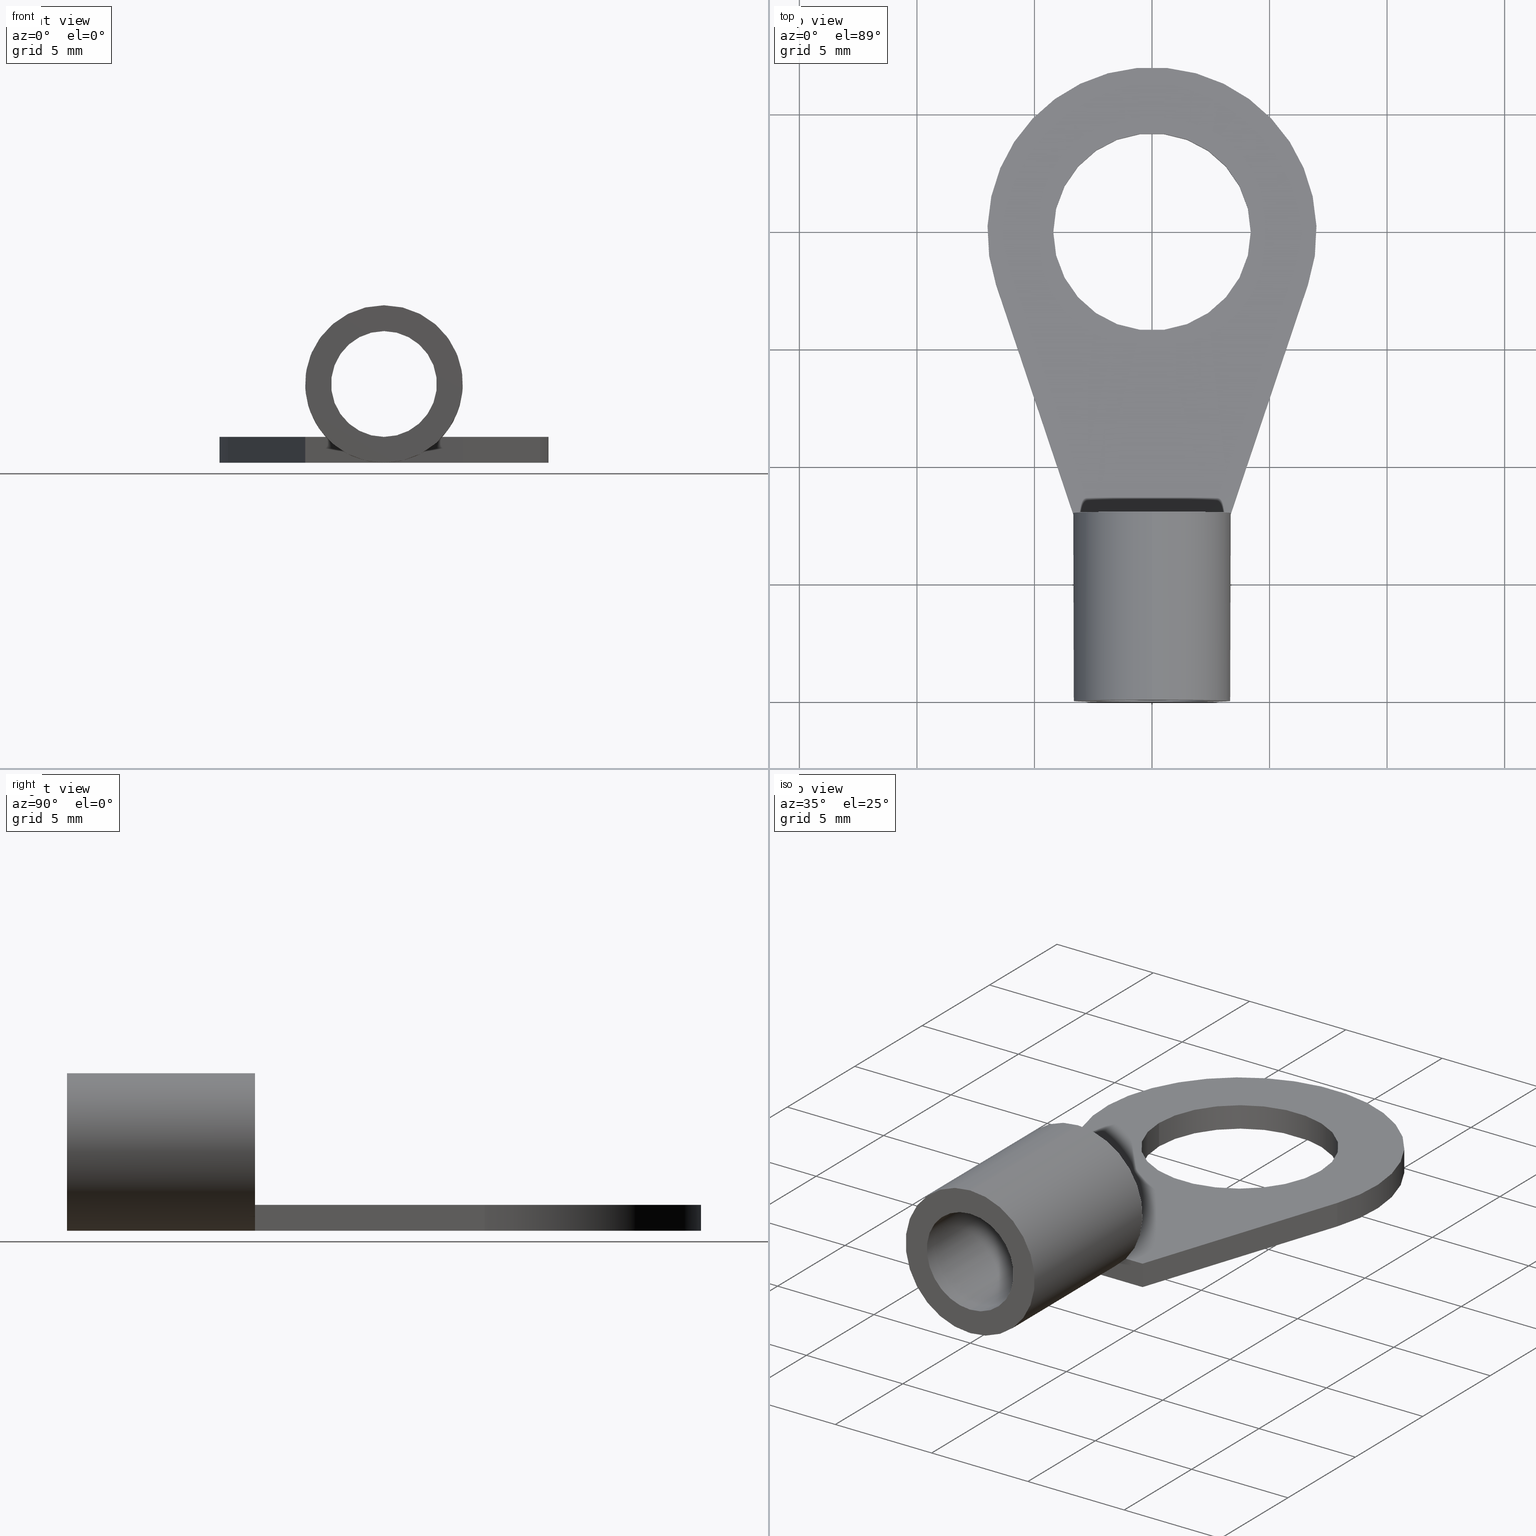
[diagram: canonical four-view strip — front | top / right | iso, engineering-drawing reading convention]
A machine part, canonical four-view strip (front | top / right | iso — engineering-drawing reading convention). The complete STEP part file that produces these views, byte-faithful:
ISO-10303-21;
HEADER;
FILE_DESCRIPTION(('Creo Elements/Direct Modeling STEP Export'),'2;1');
FILE_NAME(
'D:/temp/JobSpoolerServerData/JobServer Files/b4286439-af4a-429a-a239-a9
8053c1794e/work/output/model.stp','2017-10-18T 7:21:35',(''),(''),
'Creo Elements/Direct Modeling STEP processor for AP214 (Solid Model)',
'Creo Elements/Direct Modeling 18.1I  14-Aug-2016 (C) Parametric Technol
ogy GmbH','');
FILE_SCHEMA(('AUTOMOTIVE_DESIGN { 1 0 10303 214 1 1 1 1 }'));
ENDSEC;
DATA;
#10=CARTESIAN_POINT('',(7.55918008727245,209.799760805683,
127.490621386443));
#20=DIRECTION('',(-5.91634389396356E-9,0.169437138749457,
-0.985540996616781));
#30=DIRECTION('',(0.150207606047662,0.974359518819137,0.167514784935453)
);
#40=AXIS2_PLACEMENT_3D('',#10,#20,#30);
#50=CYLINDRICAL_SURFACE('',#40,4.2);
#60=CARTESIAN_POINT('',(8.19005203267263,213.892070784723,
128.194183483172));
#70=DIRECTION('',(-5.91634389396356E-9,0.169437138749457,
-0.985540996616781));
#80=VECTOR('',#70,1.);
#90=LINE('',#60,#80);
#100=CARTESIAN_POINT('',(8.19005203267263,213.892070784724,
128.194183483171));
#110=VERTEX_POINT('',#100);
#120=CARTESIAN_POINT('',(8.19005202616465,214.078451637348,
127.110088386893));
#130=VERTEX_POINT('',#120);
#140=EDGE_CURVE('',#110,#130,#90,.T.);
#150=ORIENTED_EDGE('',*,*,#140,.F.);
#160=CARTESIAN_POINT('',(7.55918008076447,209.986141658308,
126.406526290164));
#170=DIRECTION('',(-5.91634389396356E-9,0.169437138749457,
-0.985540996616781));
#180=DIRECTION('',(0.150207606047662,0.974359518819137,0.167514784935453
));
#190=AXIS2_PLACEMENT_3D('',#160,#170,#180);
#200=CIRCLE('',#190,4.2);
#210=CARTESIAN_POINT('',(6.92830813536429,205.893831679267,
125.702964193435));
#220=VERTEX_POINT('',#210);
#230=EDGE_CURVE('',#220,#130,#200,.T.);
#240=ORIENTED_EDGE('',*,*,#230,.T.);
#250=CARTESIAN_POINT('',(6.92830814187227,205.707450826643,
126.787059289714));
#260=DIRECTION('',(-5.91634389396356E-9,0.169437138749457,
-0.985540996616781));
#270=VECTOR('',#260,1.);
#280=LINE('',#250,#270);
#290=CARTESIAN_POINT('',(6.92830814187227,205.707450826643,
126.787059289713));
#300=VERTEX_POINT('',#290);
#310=EDGE_CURVE('',#300,#220,#280,.T.);
#320=ORIENTED_EDGE('',*,*,#310,.T.);
#330=CARTESIAN_POINT('',(7.55918008727245,209.799760805683,
127.490621386442));
#340=DIRECTION('',(-5.91634389396356E-9,0.169437138749457,
-0.985540996616781));
#350=DIRECTION('',(0.150207606047662,0.974359518819137,0.167514784935453
));
#360=AXIS2_PLACEMENT_3D('',#330,#340,#350);
#370=CIRCLE('',#360,4.2);
#380=EDGE_CURVE('',#300,#110,#370,.T.);
#390=ORIENTED_EDGE('',*,*,#380,.F.);
#400=EDGE_LOOP('',(#390,#320,#240,#150));
#410=FACE_OUTER_BOUND('',#400,.T.);
#420=ADVANCED_FACE('',(#410),#50,.F.);
#430=COLOUR_RGB('',0.752941250801086,0.752941250801086,0.752941250801086
);
#440=FILL_AREA_STYLE_COLOUR('',#430);
#450=FILL_AREA_STYLE('',(#440));
#460=SURFACE_STYLE_FILL_AREA(#450);
#470=SURFACE_SIDE_STYLE('',(#460));
#480=SURFACE_STYLE_USAGE(.BOTH.,#470);
#490=PRESENTATION_STYLE_ASSIGNMENT((#480));
#500=CARTESIAN_POINT('',(6.67871071034626,209.961204079557,
127.518377199441));
#510=DIRECTION('',(-5.91634389092459E-9,0.169437138749457,
-0.985540996616781));
#520=DIRECTION('',(1.,5.42947599190825E-9,-5.06969170343868E-9));
#530=AXIS2_PLACEMENT_3D('',#500,#510,#520);
#540=PLANE('',#530);
#550=CARTESIAN_POINT('',(0.,205.87430382224,126.815745194463));
#560=DIRECTION('',(-0.889217967210451,0.450869017245236,
0.0775147474899381));
#570=VECTOR('',#560,1.);
#580=LINE('',#550,#570);
#590=CARTESIAN_POINT('',(4.35679364389692,203.665235471174,
126.435955568494));
#600=VERTEX_POINT('',#590);
#610=CARTESIAN_POINT('',(-4.80786911816026,208.31208545091,
127.23485588993));
#620=VERTEX_POINT('',#610);
#630=EDGE_CURVE('',#600,#620,#580,.T.);
#640=ORIENTED_EDGE('',*,*,#630,.F.);
#650=CARTESIAN_POINT('',(-36.9213334627195,0.,91.4212229138226));
#660=DIRECTION('',(0.150207606047676,0.974359518819134,0.167514784935453
));
#670=VECTOR('',#660,1.);
#680=LINE('',#650,#670);
#690=CARTESIAN_POINT('',(-4.30467363790053,211.576189838954,
127.796030419464));
#700=VERTEX_POINT('',#690);
#710=EDGE_CURVE('',#620,#700,#680,.T.);
#720=ORIENTED_EDGE('',*,*,#710,.F.);
#730=CARTESIAN_POINT('',(-3.80147815764083,214.840294226998,
128.357204948997));
#740=VERTEX_POINT('',#730);
#750=EDGE_CURVE('',#700,#740,#680,.T.);
#760=ORIENTED_EDGE('',*,*,#750,.F.);
#770=CARTESIAN_POINT('',(0.,215.497328884413,128.470164278242));
#780=DIRECTION('',(0.984968130986959,0.170238568175705,
0.0292679149503728));
#790=VECTOR('',#780,1.);
#800=LINE('',#770,#790);
#810=CARTESIAN_POINT('',(6.35002696791049,216.594846118612,
128.658852666609));
#820=VERTEX_POINT('',#810);
#830=EDGE_CURVE('',#740,#820,#800,.T.);
#840=ORIENTED_EDGE('',*,*,#830,.F.);
#850=CARTESIAN_POINT('',(7.55918008727245,209.799760805683,
127.490621386442));
#860=DIRECTION('',(-5.91634389571428E-9,0.169437138749457,
-0.985540996616781));
#870=DIRECTION('',(1.,5.42947599304575E-9,-5.06969170810309E-9));
#880=AXIS2_PLACEMENT_3D('',#850,#860,#870);
#890=CIRCLE('',#880,7.);
#900=EDGE_CURVE('',#820,#600,#890,.T.);
#910=ORIENTED_EDGE('',*,*,#900,.F.);
#920=EDGE_LOOP('',(#910,#840,#760,#720,#640));
#930=FACE_OUTER_BOUND('',#920,.T.);
#940=EDGE_CURVE('',#110,#300,#370,.T.);
#950=ORIENTED_EDGE('',*,*,#940,.T.);
#960=ORIENTED_EDGE('',*,*,#380,.T.);
#970=EDGE_LOOP('',(#960,#950));
#980=FACE_BOUND('',#970,.T.);
#990=ADVANCED_FACE('',(#930,#980),#540,.F.);
#1000=COLOUR_RGB('',0.752941250801086,0.752941250801086,
0.752941250801086);
#1010=FILL_AREA_STYLE_COLOUR('',#1000);
#1020=FILL_AREA_STYLE('',(#1010));
#1030=SURFACE_STYLE_FILL_AREA(#1020);
#1040=SURFACE_SIDE_STYLE('',(#1030));
#1050=SURFACE_STYLE_USAGE(.BOTH.,#1040);
#1060=PRESENTATION_STYLE_ASSIGNMENT((#1050));
#1070=CARTESIAN_POINT('',(7.72299772260922,212.262650596853,
126.797910475337));
#1080=DIRECTION('',(5.91634389036865E-9,-0.169437138749457,
0.985540996616781));
#1090=DIRECTION('',(1.,5.42947597823552E-9,-5.06969170522524E-9));
#1100=AXIS2_PLACEMENT_3D('',#1070,#1080,#1090);
#1110=PLANE('',#1100);
#1120=CARTESIAN_POINT('',(0.,215.683709738163,127.386069182157));
#1130=DIRECTION('',(-0.984968130986959,-0.170238568175705,
-0.0292679149503728));
#1140=VECTOR('',#1130,1.);
#1150=LINE('',#1120,#1140);
#1160=CARTESIAN_POINT('',(6.35002696140251,216.781226971236,
127.574757570331));
#1170=VERTEX_POINT('',#1160);
#1180=CARTESIAN_POINT('',(-3.80147816414881,215.026675079622,
127.273109852719));
#1190=VERTEX_POINT('',#1180);
#1200=EDGE_CURVE('',#1170,#1190,#1150,.T.);
#1210=ORIENTED_EDGE('',*,*,#1200,.F.);
#1220=CARTESIAN_POINT('',(-36.9500660070076,0.,90.3050846673102));
#1230=DIRECTION('',(-0.150207606047676,-0.974359518819134,
-0.167514784935453));
#1240=VECTOR('',#1230,1.);
#1250=LINE('',#1220,#1240);
#1260=CARTESIAN_POINT('',(-3.93186817036907,214.180867420061,
127.127696085571));
#1270=VERTEX_POINT('',#1260);
#1280=EDGE_CURVE('',#1190,#1270,#1250,.T.);
#1290=ORIENTED_EDGE('',*,*,#1280,.F.);
#1300=CARTESIAN_POINT('',(-36.9500660070076,0.,90.3050846673102));
#1310=DIRECTION('',(-0.150207606047676,-0.974359518819134,
-0.167514784935453));
#1320=VECTOR('',#1310,1.);
#1330=LINE('',#1300,#1320);
#1340=CARTESIAN_POINT('',(-4.30467364440851,211.762570691579,
126.711935323185));
#1350=VERTEX_POINT('',#1340);
#1360=EDGE_CURVE('',#1270,#1350,#1330,.T.);
#1370=ORIENTED_EDGE('',*,*,#1360,.F.);
#1380=CARTESIAN_POINT('',(-4.67747911844793,209.344273963097,
126.2961745608));
#1390=VERTEX_POINT('',#1380);
#1400=EDGE_CURVE('',#1350,#1390,#1330,.T.);
#1410=ORIENTED_EDGE('',*,*,#1400,.F.);
#1420=CARTESIAN_POINT('',(-4.80786912466824,208.498466303534,
126.150760793651));
#1430=VERTEX_POINT('',#1420);
#1440=EDGE_CURVE('',#1390,#1430,#1250,.T.);
#1450=ORIENTED_EDGE('',*,*,#1440,.F.);
#1460=CARTESIAN_POINT('',(0.,206.060684671565,125.731650097618));
#1470=DIRECTION('',(0.889217967210451,-0.450869017245236,
-0.0775147474899381));
#1480=VECTOR('',#1470,1.);
#1490=LINE('',#1460,#1480);
#1500=CARTESIAN_POINT('',(4.35679363738893,203.851616323798,
125.351860472215));
#1510=VERTEX_POINT('',#1500);
#1520=EDGE_CURVE('',#1430,#1510,#1490,.T.);
#1530=ORIENTED_EDGE('',*,*,#1520,.F.);
#1540=CARTESIAN_POINT('',(7.55918008076447,209.986141658308,
126.406526290164));
#1550=DIRECTION('',(-5.91634389571428E-9,0.169437138749457,
-0.985540996616781));
#1560=DIRECTION('',(1.,5.42947599304575E-9,-5.06969170810309E-9));
#1570=AXIS2_PLACEMENT_3D('',#1540,#1550,#1560);
#1580=CIRCLE('',#1570,7.);
#1590=EDGE_CURVE('',#1170,#1510,#1580,.T.);
#1600=ORIENTED_EDGE('',*,*,#1590,.T.);
#1610=EDGE_LOOP('',(#1600,#1530,#1450,#1410,#1370,#1290,#1210));
#1620=FACE_OUTER_BOUND('',#1610,.T.);
#1630=EDGE_CURVE('',#130,#220,#200,.T.);
#1640=ORIENTED_EDGE('',*,*,#1630,.F.);
#1650=ORIENTED_EDGE('',*,*,#230,.F.);
#1660=EDGE_LOOP('',(#1650,#1640));
#1670=FACE_BOUND('',#1660,.T.);
#1680=ADVANCED_FACE('',(#1620,#1670),#1110,.F.);
#1690=COLOUR_RGB('',0.752941250801086,0.752941250801086,
0.752941250801086);
#1700=FILL_AREA_STYLE_COLOUR('',#1690);
#1710=FILL_AREA_STYLE('',(#1700));
#1720=SURFACE_STYLE_FILL_AREA(#1710);
#1730=SURFACE_SIDE_STYLE('',(#1720));
#1740=SURFACE_STYLE_USAGE(.BOTH.,#1730);
#1750=PRESENTATION_STYLE_ASSIGNMENT((#1740));
#1760=CARTESIAN_POINT('',(7.55918008076447,209.986141658308,
126.406526290164));
#1770=DIRECTION('',(-5.91634389571428E-9,0.169437138749457,
-0.985540996616781));
#1780=DIRECTION('',(1.,5.42947599197708E-9,-5.06969170188712E-9));
#1790=AXIS2_PLACEMENT_3D('',#1760,#1770,#1780);
#1800=CYLINDRICAL_SURFACE('',#1790,7.);
#1810=CARTESIAN_POINT('',(4.35679363738891,203.851616323798,
125.351860472215));
#1820=DIRECTION('',(5.91634389571428E-9,-0.169437138749457,
0.985540996616781));
#1830=VECTOR('',#1820,1.);
#1840=LINE('',#1810,#1830);
#1850=EDGE_CURVE('',#1510,#600,#1840,.T.);
#1860=ORIENTED_EDGE('',*,*,#1850,.F.);
#1870=ORIENTED_EDGE('',*,*,#900,.T.);
#1880=CARTESIAN_POINT('',(6.35002696140251,216.781226971236,
127.574757570331));
#1890=DIRECTION('',(5.91634389571428E-9,-0.169437138749457,
0.985540996616781));
#1900=VECTOR('',#1890,1.);
#1910=LINE('',#1880,#1900);
#1920=EDGE_CURVE('',#1170,#820,#1910,.T.);
#1930=ORIENTED_EDGE('',*,*,#1920,.T.);
#1940=ORIENTED_EDGE('',*,*,#1590,.F.);
#1950=EDGE_LOOP('',(#1940,#1930,#1870,#1860));
#1960=FACE_OUTER_BOUND('',#1950,.T.);
#1970=ADVANCED_FACE('',(#1960),#1800,.T.);
#1980=COLOUR_RGB('',0.752941250801086,0.752941250801086,
0.752941250801086);
#1990=FILL_AREA_STYLE_COLOUR('',#1980);
#2000=FILL_AREA_STYLE('',(#1990));
#2010=SURFACE_STYLE_FILL_AREA(#2000);
#2020=SURFACE_SIDE_STYLE('',(#2010));
#2030=SURFACE_STYLE_USAGE(.BOTH.,#2020);
#2040=PRESENTATION_STYLE_ASSIGNMENT((#2030));
#2050=CARTESIAN_POINT('',(-3.80147816414881,215.026675079622,
127.273109852719));
#2060=DIRECTION('',(-0.172736159908852,0.970726473275497,
0.166890182881021));
#2070=DIRECTION('',(-0.984968130986959,-0.170238568175705,
-0.0292679149503728));
#2080=AXIS2_PLACEMENT_3D('',#2050,#2060,#2070);
#2090=PLANE('',#2080);
#2100=ORIENTED_EDGE('',*,*,#1920,.F.);
#2110=ORIENTED_EDGE('',*,*,#830,.T.);
#2120=CARTESIAN_POINT('',(-3.80147816414881,215.026675079622,
127.273109852719));
#2130=DIRECTION('',(5.91634389571428E-9,-0.169437138749457,
0.985540996616781));
#2140=VECTOR('',#2130,1.);
#2150=LINE('',#2120,#2140);
#2160=EDGE_CURVE('',#1190,#740,#2150,.T.);
#2170=ORIENTED_EDGE('',*,*,#2160,.T.);
#2180=ORIENTED_EDGE('',*,*,#1200,.T.);
#2190=EDGE_LOOP('',(#2180,#2170,#2110,#2100));
#2200=FACE_OUTER_BOUND('',#2190,.T.);
#2210=ADVANCED_FACE('',(#2200),#2090,.T.);
#2220=COLOUR_RGB('',0.752941250801086,0.752941250801086,
0.752941250801086);
#2230=FILL_AREA_STYLE_COLOUR('',#2220);
#2240=FILL_AREA_STYLE('',(#2230));
#2250=SURFACE_STYLE_FILL_AREA(#2240);
#2260=SURFACE_SIDE_STYLE('',(#2250));
#2270=SURFACE_STYLE_USAGE(.BOTH.,#2260);
#2280=PRESENTATION_STYLE_ASSIGNMENT((#2270));
#2290=CARTESIAN_POINT('',(-4.80786912466825,208.498466303534,
126.150760793651));
#2300=DIRECTION('',(-0.98865447709775,0.148035752772573,
0.0254507527517699));
#2310=DIRECTION('',(-0.150207606047676,-0.974359518819135,
-0.167514784935453));
#2320=AXIS2_PLACEMENT_3D('',#2290,#2300,#2310);
#2330=PLANE('',#2320);
#2340=CARTESIAN_POINT('',(-4.30467365772028,212.143804253765,
124.494468080797));
#2350=DIRECTION('',(-0.98865447709775,0.148035752772573,
0.0254507527517699));
#2360=DIRECTION('',(-5.91634388347198E-9,0.169437138749457,
-0.985540996616781));
#2370=AXIS2_PLACEMENT_3D('',#2340,#2350,#2360);
#2380=CIRCLE('',#2370,3.35);
#2390=EDGE_CURVE('',#1390,#700,#2380,.T.);
#2400=ORIENTED_EDGE('',*,*,#2390,.F.);
#2410=ORIENTED_EDGE('',*,*,#710,.T.);
#2420=CARTESIAN_POINT('',(-4.80786912466825,208.498466303534,
126.150760793651));
#2430=DIRECTION('',(5.91634389571428E-9,-0.169437138749457,
0.985540996616781));
#2440=VECTOR('',#2430,1.);
#2450=LINE('',#2420,#2440);
#2460=EDGE_CURVE('',#1430,#620,#2450,.T.);
#2470=ORIENTED_EDGE('',*,*,#2460,.T.);
#2480=ORIENTED_EDGE('',*,*,#1440,.T.);
#2490=EDGE_LOOP('',(#2480,#2470,#2410,#2400));
#2500=FACE_OUTER_BOUND('',#2490,.T.);
#2510=ADVANCED_FACE('',(#2500),#2330,.T.);
#2520=COLOUR_RGB('',0.752941250801086,0.752941250801086,
0.752941250801086);
#2530=FILL_AREA_STYLE_COLOUR('',#2520);
#2540=FILL_AREA_STYLE('',(#2530));
#2550=SURFACE_STYLE_FILL_AREA(#2540);
#2560=SURFACE_SIDE_STYLE('',(#2550));
#2570=SURFACE_STYLE_USAGE(.BOTH.,#2560);
#2580=PRESENTATION_STYLE_ASSIGNMENT((#2570));
#2590=CARTESIAN_POINT('',(4.35679363738891,203.851616323798,
125.351860472215));
#2600=DIRECTION('',(-0.45748377762508,-0.876360762072739,
-0.150666545421251));
#2610=DIRECTION('',(0.889217967210451,-0.450869017245236,
-0.077514747489938));
#2620=AXIS2_PLACEMENT_3D('',#2590,#2600,#2610);
#2630=PLANE('',#2620);
#2640=ORIENTED_EDGE('',*,*,#2460,.F.);
#2650=ORIENTED_EDGE('',*,*,#630,.T.);
#2660=ORIENTED_EDGE('',*,*,#1850,.T.);
#2670=ORIENTED_EDGE('',*,*,#1520,.T.);
#2680=EDGE_LOOP('',(#2670,#2660,#2650,#2640));
#2690=FACE_OUTER_BOUND('',#2680,.T.);
#2700=ADVANCED_FACE('',(#2690),#2630,.T.);
#2710=COLOUR_RGB('',0.752941250801086,0.752941250801086,
0.752941250801086);
#2720=FILL_AREA_STYLE_COLOUR('',#2710);
#2730=FILL_AREA_STYLE('',(#2720));
#2740=SURFACE_STYLE_FILL_AREA(#2730);
#2750=SURFACE_SIDE_STYLE('',(#2740));
#2760=SURFACE_STYLE_USAGE(.BOTH.,#2750);
#2770=PRESENTATION_STYLE_ASSIGNMENT((#2760));
#2780=ORIENTED_EDGE('',*,*,#1280,.T.);
#2790=ORIENTED_EDGE('',*,*,#2160,.F.);
#2800=ORIENTED_EDGE('',*,*,#750,.T.);
#2810=EDGE_CURVE('',#700,#1270,#2380,.T.);
#2820=ORIENTED_EDGE('',*,*,#2810,.F.);
#2830=EDGE_LOOP('',(#2820,#2800,#2790,#2780));
#2840=FACE_OUTER_BOUND('',#2830,.T.);
#2850=ADVANCED_FACE('',(#2840),#2330,.T.);
#2860=COLOUR_RGB('',0.752941250801086,0.752941250801086,
0.752941250801086);
#2870=FILL_AREA_STYLE_COLOUR('',#2860);
#2880=FILL_AREA_STYLE('',(#2870));
#2890=SURFACE_STYLE_FILL_AREA(#2880);
#2900=SURFACE_SIDE_STYLE('',(#2890));
#2910=SURFACE_STYLE_USAGE(.BOTH.,#2900);
#2920=PRESENTATION_STYLE_ASSIGNMENT((#2910));
#2930=CARTESIAN_POINT('',(-4.30467365772029,212.143804253765,
124.494468080797));
#2940=DIRECTION('',(-0.98865447709775,0.148035752772573,
0.0254507527517699));
#2950=DIRECTION('',(-5.91634389376223E-9,0.169437138749457,
-0.985540996616781));
#2960=AXIS2_PLACEMENT_3D('',#2930,#2940,#2950);
#2970=CYLINDRICAL_SURFACE('',#2960,3.35);
#2980=CARTESIAN_POINT('',(-4.30467363790054,211.576189838954,
127.796030419464));
#2990=DIRECTION('',(-0.98865447709775,0.148035752772573,
0.0254507527517699));
#3000=VECTOR('',#2990,1.);
#3010=LINE('',#2980,#3000);
#3020=CARTESIAN_POINT('',(-12.2139094546825,212.760475861135,
127.999636441478));
#3030=VERTEX_POINT('',#3020);
#3040=EDGE_CURVE('',#700,#3030,#3010,.T.);
#3050=ORIENTED_EDGE('',*,*,#3040,.T.);
#3060=ORIENTED_EDGE('',*,*,#2390,.T.);
#3070=CARTESIAN_POINT('',(-4.30467365772029,212.143804253765,
124.494468080797));
#3080=DIRECTION('',(-0.98865447709775,0.148035752772573,
0.0254507527517699));
#3090=DIRECTION('',(-5.91634389376223E-9,0.169437138749457,
-0.985540996616781));
#3100=AXIS2_PLACEMENT_3D('',#3070,#3080,#3090);
#3110=CIRCLE('',#3100,3.35);
#3120=CARTESIAN_POINT('',(-4.30467367754004,212.711418668576,
121.192905742131));
#3130=VERTEX_POINT('',#3120);
#3140=EDGE_CURVE('',#3130,#1390,#3110,.T.);
#3150=ORIENTED_EDGE('',*,*,#3140,.T.);
#3160=CARTESIAN_POINT('',(-4.30467367754004,212.711418668576,
121.192905742131));
#3170=DIRECTION('',(-0.98865447709775,0.148035752772573,
0.0254507527517699));
#3180=VECTOR('',#3170,1.);
#3190=LINE('',#3160,#3180);
#3200=CARTESIAN_POINT('',(-12.213909494322,213.895704690756,
121.396511764145));
#3210=VERTEX_POINT('',#3200);
#3220=EDGE_CURVE('',#3130,#3210,#3190,.T.);
#3230=ORIENTED_EDGE('',*,*,#3220,.F.);
#3240=CARTESIAN_POINT('',(-12.2139094745023,213.328090275945,
124.698074102811));
#3250=DIRECTION('',(-0.98865447709775,0.148035752772573,
0.0254507527517699));
#3260=DIRECTION('',(-5.91634389376223E-9,0.169437138749457,
-0.985540996616781));
#3270=AXIS2_PLACEMENT_3D('',#3240,#3250,#3260);
#3280=CIRCLE('',#3270,3.35);
#3290=EDGE_CURVE('',#3210,#3030,#3280,.T.);
#3300=ORIENTED_EDGE('',*,*,#3290,.F.);
#3310=EDGE_LOOP('',(#3300,#3230,#3150,#3060,#3050));
#3320=FACE_OUTER_BOUND('',#3310,.T.);
#3330=ADVANCED_FACE('',(#3320),#2970,.T.);
#3340=COLOUR_RGB('',0.752941250801086,0.752941250801086,
0.752941250801086);
#3350=FILL_AREA_STYLE_COLOUR('',#3340);
#3360=FILL_AREA_STYLE('',(#3350));
#3370=SURFACE_STYLE_FILL_AREA(#3360);
#3380=SURFACE_SIDE_STYLE('',(#3370));
#3390=SURFACE_STYLE_USAGE(.BOTH.,#3380);
#3400=PRESENTATION_STYLE_ASSIGNMENT((#3390));
#3410=CARTESIAN_POINT('',(-12.2139094579365,212.853666287447,
127.457588893338));
#3420=DIRECTION('',(-0.98865447709775,0.148035752772573,
0.0254507527517699));
#3430=DIRECTION('',(-5.91634389376223E-9,0.169437138749457,
-0.985540996616781));
#3440=AXIS2_PLACEMENT_3D('',#3410,#3420,#3430);
#3450=PLANE('',#3440);
#3460=EDGE_CURVE('',#3030,#3210,#3280,.T.);
#3470=ORIENTED_EDGE('',*,*,#3460,.T.);
#3480=ORIENTED_EDGE('',*,*,#3290,.T.);
#3490=EDGE_LOOP('',(#3480,#3470));
#3500=FACE_OUTER_BOUND('',#3490,.T.);
#3510=CARTESIAN_POINT('',(-12.2139094745023,213.328090275945,
124.698074102811));
#3520=DIRECTION('',(-0.98865447709775,0.148035752772573,
0.0254507527517699));
#3530=DIRECTION('',(-5.91634389376223E-9,0.169437138749457,
-0.985540996616781));
#3540=AXIS2_PLACEMENT_3D('',#3510,#3520,#3530);
#3550=CIRCLE('',#3540,2.25);
#3560=CARTESIAN_POINT('',(-12.2139094878141,213.709323838132,
122.480606860424));
#3570=VERTEX_POINT('',#3560);
#3580=CARTESIAN_POINT('',(-12.2139094611905,212.946856713759,
126.915541345199));
#3590=VERTEX_POINT('',#3580);
#3600=EDGE_CURVE('',#3570,#3590,#3550,.T.);
#3610=ORIENTED_EDGE('',*,*,#3600,.F.);
#3620=EDGE_CURVE('',#3590,#3570,#3550,.T.);
#3630=ORIENTED_EDGE('',*,*,#3620,.F.);
#3640=EDGE_LOOP('',(#3630,#3610));
#3650=FACE_BOUND('',#3640,.T.);
#3660=ADVANCED_FACE('',(#3500,#3650),#3450,.T.);
#3670=COLOUR_RGB('',0.752941250801086,0.752941250801086,
0.752941250801086);
#3680=FILL_AREA_STYLE_COLOUR('',#3670);
#3690=FILL_AREA_STYLE('',(#3680));
#3700=SURFACE_STYLE_FILL_AREA(#3690);
#3710=SURFACE_SIDE_STYLE('',(#3700));
#3720=SURFACE_STYLE_USAGE(.BOTH.,#3710);
#3730=PRESENTATION_STYLE_ASSIGNMENT((#3720));
#3740=CARTESIAN_POINT('',(-4.30467364115454,211.669380265266,
127.253982871324));
#3750=DIRECTION('',(-0.98865447709775,0.148035752772573,
0.0254507527517699));
#3760=DIRECTION('',(-5.91634389376223E-9,0.169437138749457,
-0.985540996616781));
#3770=AXIS2_PLACEMENT_3D('',#3740,#3750,#3760);
#3780=PLANE('',#3770);
#3790=CARTESIAN_POINT('',(-4.30467365772029,212.143804253765,
124.494468080797));
#3800=DIRECTION('',(-0.98865447709775,0.148035752772573,
0.0254507527517699));
#3810=DIRECTION('',(-5.91634389376223E-9,0.169437138749457,
-0.985540996616781));
#3820=AXIS2_PLACEMENT_3D('',#3790,#3800,#3810);
#3830=CIRCLE('',#3820,2.25);
#3840=CARTESIAN_POINT('',(-4.30467367103207,212.525037815951,
122.27700083841));
#3850=VERTEX_POINT('',#3840);
#3860=EDGE_CURVE('',#1350,#3850,#3830,.T.);
#3870=ORIENTED_EDGE('',*,*,#3860,.T.);
#3880=ORIENTED_EDGE('',*,*,#1360,.T.);
#3890=EDGE_CURVE('',#1270,#3130,#3110,.T.);
#3900=ORIENTED_EDGE('',*,*,#3890,.F.);
#3910=ORIENTED_EDGE('',*,*,#3140,.F.);
#3920=ORIENTED_EDGE('',*,*,#1400,.T.);
#3930=EDGE_CURVE('',#3850,#1350,#3830,.T.);
#3940=ORIENTED_EDGE('',*,*,#3930,.T.);
#3950=EDGE_LOOP('',(#3940,#3920,#3910,#3900,#3880,#3870));
#3960=FACE_OUTER_BOUND('',#3950,.T.);
#3970=ADVANCED_FACE('',(#3960),#3780,.F.);
#3980=COLOUR_RGB('',0.752941250801086,0.752941250801086,
0.752941250801086);
#3990=FILL_AREA_STYLE_COLOUR('',#3980);
#4000=FILL_AREA_STYLE('',(#3990));
#4010=SURFACE_STYLE_FILL_AREA(#4000);
#4020=SURFACE_SIDE_STYLE('',(#4010));
#4030=SURFACE_STYLE_USAGE(.BOTH.,#4020);
#4040=PRESENTATION_STYLE_ASSIGNMENT((#4030));
#4050=CARTESIAN_POINT('',(-4.30467365772029,212.143804253765,
124.494468080797));
#4060=DIRECTION('',(-0.98865447709775,0.148035752772573,
0.0254507527517699));
#4070=DIRECTION('',(-5.91634389376223E-9,0.169437138749457,
-0.985540996616781));
#4080=AXIS2_PLACEMENT_3D('',#4050,#4060,#4070);
#4090=CYLINDRICAL_SURFACE('',#4080,2.25);
#4100=CARTESIAN_POINT('',(-4.30467364440852,211.762570691579,
126.711935323185));
#4110=DIRECTION('',(-0.98865447709775,0.148035752772573,
0.0254507527517699));
#4120=VECTOR('',#4110,1.);
#4130=LINE('',#4100,#4120);
#4140=EDGE_CURVE('',#1350,#3590,#4130,.T.);
#4150=ORIENTED_EDGE('',*,*,#4140,.T.);
#4160=ORIENTED_EDGE('',*,*,#3860,.F.);
#4170=CARTESIAN_POINT('',(-4.30467367103207,212.525037815951,
122.27700083841));
#4180=DIRECTION('',(-0.98865447709775,0.148035752772573,
0.0254507527517699));
#4190=VECTOR('',#4180,1.);
#4200=LINE('',#4170,#4190);
#4210=EDGE_CURVE('',#3850,#3570,#4200,.T.);
#4220=ORIENTED_EDGE('',*,*,#4210,.F.);
#4230=ORIENTED_EDGE('',*,*,#3620,.T.);
#4240=EDGE_LOOP('',(#4230,#4220,#4160,#4150));
#4250=FACE_OUTER_BOUND('',#4240,.T.);
#4260=ADVANCED_FACE('',(#4250),#4090,.F.);
#4270=COLOUR_RGB('',0.752941250801086,0.752941250801086,
0.752941250801086);
#4280=FILL_AREA_STYLE_COLOUR('',#4270);
#4290=FILL_AREA_STYLE('',(#4280));
#4300=SURFACE_STYLE_FILL_AREA(#4290);
#4310=SURFACE_SIDE_STYLE('',(#4300));
#4320=SURFACE_STYLE_USAGE(.BOTH.,#4310);
#4330=PRESENTATION_STYLE_ASSIGNMENT((#4320));
#4340=CARTESIAN_POINT('',(7.55918008727245,209.799760805683,
127.490621386443));
#4350=DIRECTION('',(-5.91634389396356E-9,0.169437138749457,
-0.985540996616781));
#4360=DIRECTION('',(0.150207606047662,0.974359518819137,
0.167514784935453));
#4370=AXIS2_PLACEMENT_3D('',#4340,#4350,#4360);
#4380=CYLINDRICAL_SURFACE('',#4370,4.2);
#4390=ORIENTED_EDGE('',*,*,#940,.F.);
#4400=ORIENTED_EDGE('',*,*,#310,.F.);
#4410=ORIENTED_EDGE('',*,*,#1630,.T.);
#4420=ORIENTED_EDGE('',*,*,#140,.T.);
#4430=EDGE_LOOP('',(#4420,#4410,#4400,#4390));
#4440=FACE_OUTER_BOUND('',#4430,.T.);
#4450=ADVANCED_FACE('',(#4440),#4380,.F.);
#4460=COLOUR_RGB('',0.752941250801086,0.752941250801086,
0.752941250801086);
#4470=FILL_AREA_STYLE_COLOUR('',#4460);
#4480=FILL_AREA_STYLE('',(#4470));
#4490=SURFACE_STYLE_FILL_AREA(#4480);
#4500=SURFACE_SIDE_STYLE('',(#4490));
#4510=SURFACE_STYLE_USAGE(.BOTH.,#4500);
#4520=PRESENTATION_STYLE_ASSIGNMENT((#4510));
#4530=CARTESIAN_POINT('',(-4.30467365772029,212.143804253765,
124.494468080797));
#4540=DIRECTION('',(-0.98865447709775,0.148035752772573,
0.0254507527517699));
#4550=DIRECTION('',(-5.91634389376223E-9,0.169437138749457,
-0.985540996616781));
#4560=AXIS2_PLACEMENT_3D('',#4530,#4540,#4550);
#4570=CYLINDRICAL_SURFACE('',#4560,3.35);
#4580=ORIENTED_EDGE('',*,*,#3040,.F.);
#4590=ORIENTED_EDGE('',*,*,#3460,.F.);
#4600=ORIENTED_EDGE('',*,*,#3220,.T.);
#4610=ORIENTED_EDGE('',*,*,#3890,.T.);
#4620=ORIENTED_EDGE('',*,*,#2810,.T.);
#4630=EDGE_LOOP('',(#4620,#4610,#4600,#4590,#4580));
#4640=FACE_OUTER_BOUND('',#4630,.T.);
#4650=ADVANCED_FACE('',(#4640),#4570,.T.);
#4660=COLOUR_RGB('',0.752941250801086,0.752941250801086,
0.752941250801086);
#4670=FILL_AREA_STYLE_COLOUR('',#4660);
#4680=FILL_AREA_STYLE('',(#4670));
#4690=SURFACE_STYLE_FILL_AREA(#4680);
#4700=SURFACE_SIDE_STYLE('',(#4690));
#4710=SURFACE_STYLE_USAGE(.BOTH.,#4700);
#4720=PRESENTATION_STYLE_ASSIGNMENT((#4710));
#4730=CARTESIAN_POINT('',(-4.30467365772029,212.143804253765,
124.494468080797));
#4740=DIRECTION('',(-0.98865447709775,0.148035752772573,
0.0254507527517699));
#4750=DIRECTION('',(-5.91634389376223E-9,0.169437138749457,
-0.985540996616781));
#4760=AXIS2_PLACEMENT_3D('',#4730,#4740,#4750);
#4770=CYLINDRICAL_SURFACE('',#4760,2.25);
#4780=ORIENTED_EDGE('',*,*,#4140,.F.);
#4790=ORIENTED_EDGE('',*,*,#3600,.T.);
#4800=ORIENTED_EDGE('',*,*,#4210,.T.);
#4810=ORIENTED_EDGE('',*,*,#3930,.F.);
#4820=EDGE_LOOP('',(#4810,#4800,#4790,#4780));
#4830=FACE_OUTER_BOUND('',#4820,.T.);
#4840=ADVANCED_FACE('',(#4830),#4770,.F.);
#4850=COLOUR_RGB('',0.752941250801086,0.752941250801086,
0.752941250801086);
#4860=FILL_AREA_STYLE_COLOUR('',#4850);
#4870=FILL_AREA_STYLE('',(#4860));
#4880=SURFACE_STYLE_FILL_AREA(#4870);
#4890=SURFACE_SIDE_STYLE('',(#4880));
#4900=SURFACE_STYLE_USAGE(.BOTH.,#4890);
#4910=PRESENTATION_STYLE_ASSIGNMENT((#4900));
#4920=CLOSED_SHELL('',(#420,#990,#1680,#1970,#2210,#2510,#2700,#2850,
#3330,#3660,#3970,#4260,#4450,#4650,#4840));
#4930=MANIFOLD_SOLID_BREP('',#4920);
#4940=CARTESIAN_POINT('',(0.,0.,0.));
#4950=DIRECTION('',(0.,0.,1.));
#4960=DIRECTION('',(1.,0.,0.));
#4970=AXIS2_PLACEMENT_3D('',#4940,#4950,#4960);
#4980=APPLICATION_CONTEXT(' ');
#4990=APPLICATION_PROTOCOL_DEFINITION(' ','automotive_design',1998,#4980
);
#5000=PRODUCT_CONTEXT('',#4980,'mechanical');
#5010=PRODUCT_DEFINITION_CONTEXT('part definition',#4980,'design');
#5020=PRODUCT('C_RC_10_M8_DIN-select','C_RC_10_M8_DIN-select','',(#5000)
);
#5030=PRODUCT_RELATED_PRODUCT_CATEGORY('part',' ',(#5020));
#5040=PRODUCT_DEFINITION_FORMATION_WITH_SPECIFIED_SOURCE('','',#5020,
.BOUGHT.);
#5050=PRODUCT_DEFINITION('',' ',#5040,#5010);
#5060=PRODUCT_DEFINITION_SHAPE('','',#5050);
#5070=DIMENSIONAL_EXPONENTS(1.,0.,0.,0.,0.,0.,0.);
#5080=DIMENSIONAL_EXPONENTS(0.,0.,0.,0.,0.,0.,0.);
#5090=DIMENSIONAL_EXPONENTS(0.,0.,0.,0.,0.,0.,0.);
#5100=(LENGTH_UNIT() NAMED_UNIT(*) SI_UNIT(.MILLI.,.METRE.));
#5110=(NAMED_UNIT(*) PLANE_ANGLE_UNIT() SI_UNIT($,.RADIAN.));
#5120=(NAMED_UNIT(*) SI_UNIT($,.STERADIAN.) SOLID_ANGLE_UNIT());
#5130=(GEOMETRIC_REPRESENTATION_CONTEXT(3) 
GLOBAL_UNCERTAINTY_ASSIGNED_CONTEXT((#5140)) 
GLOBAL_UNIT_ASSIGNED_CONTEXT((#5100,#5110,#5120)) REPRESENTATION_CONTEXT
('',''));
#5140=UNCERTAINTY_MEASURE_WITH_UNIT(LENGTH_MEASURE(0.0024),#5100,
'distance_accuracy_value','maximum gap value');
#5150=ADVANCED_BREP_SHAPE_REPRESENTATION('',(#4970,#4930),#5130);
#5160=SHAPE_DEFINITION_REPRESENTATION(#5060,#5150);
#5170=COLOUR_RGB('',0.752941250801086,0.752941250801086,
0.752941250801086);
#5180=FILL_AREA_STYLE_COLOUR('',#5170);
#5190=FILL_AREA_STYLE('',(#5180));
#5200=SURFACE_STYLE_FILL_AREA(#5190);
#5210=SURFACE_SIDE_STYLE('',(#5200));
#5220=SURFACE_STYLE_USAGE(.BOTH.,#5210);
#5230=PRESENTATION_STYLE_ASSIGNMENT((#5220));
#5240=STYLED_ITEM('',(#5230),#4930);
#5250=OVER_RIDING_STYLED_ITEM('',(#490),#420,#5240);
#5260=OVER_RIDING_STYLED_ITEM('',(#1060),#990,#5240);
#5270=OVER_RIDING_STYLED_ITEM('',(#1750),#1680,#5240);
#5280=OVER_RIDING_STYLED_ITEM('',(#2040),#1970,#5240);
#5290=OVER_RIDING_STYLED_ITEM('',(#2280),#2210,#5240);
#5300=OVER_RIDING_STYLED_ITEM('',(#2580),#2510,#5240);
#5310=OVER_RIDING_STYLED_ITEM('',(#2770),#2700,#5240);
#5320=OVER_RIDING_STYLED_ITEM('',(#2920),#2850,#5240);
#5330=OVER_RIDING_STYLED_ITEM('',(#3400),#3330,#5240);
#5340=OVER_RIDING_STYLED_ITEM('',(#3730),#3660,#5240);
#5350=OVER_RIDING_STYLED_ITEM('',(#4040),#3970,#5240);
#5360=OVER_RIDING_STYLED_ITEM('',(#4330),#4260,#5240);
#5370=OVER_RIDING_STYLED_ITEM('',(#4520),#4450,#5240);
#5380=OVER_RIDING_STYLED_ITEM('',(#4720),#4650,#5240);
#5390=OVER_RIDING_STYLED_ITEM('',(#4910),#4840,#5240);
#5400=DRAUGHTING_MODEL('',(#5240,#5250,#5260,#5270,#5280,#5290,#5300,
#5310,#5320,#5330,#5340,#5350,#5360,#5370,#5380,#5390),#5130);
#5410=CARTESIAN_POINT('',(-226.912404354425,26.8291805689774,
90.0993629239746));
#5420=DIRECTION('',(0.167514784935454,-0.0254507527517675,
-0.985540996616781));
#5430=DIRECTION('',(0.150207606047662,0.988654477097753,
-5.91634382457462E-9));
#5440=AXIS2_PLACEMENT_3D('',#5410,#5420,#5430);
#5450=ITEM_DEFINED_TRANSFORMATION('C_RC_10_M8_DIN-select','',#4970,#5440
);
#5460=APPLICATION_CONTEXT(' ');
#5470=APPLICATION_PROTOCOL_DEFINITION(' ','automotive_design',1998,#5460
);
#5480=PRODUCT_CONTEXT('',#5460,'mechanical');
#5490=PRODUCT_DEFINITION_CONTEXT('part definition',#5460,'design');
#5500=PRODUCT('C_RC_10_M8_DIN-select','C_RC_10_M8_DIN-select','',(#5480)
);
#5510=PRODUCT_RELATED_PRODUCT_CATEGORY('part',' ',(#5500));
#5520=PRODUCT_DEFINITION_FORMATION_WITH_SPECIFIED_SOURCE('','',#5500,
.BOUGHT.);
#5530=PRODUCT_DEFINITION('',' ',#5520,#5490);
#5540=PRODUCT_DEFINITION_SHAPE('','',#5530);
#5550=DIMENSIONAL_EXPONENTS(1.,0.,0.,0.,0.,0.,0.);
#5560=DIMENSIONAL_EXPONENTS(0.,0.,0.,0.,0.,0.,0.);
#5570=DIMENSIONAL_EXPONENTS(0.,0.,0.,0.,0.,0.,0.);
#5580=(LENGTH_UNIT() NAMED_UNIT(*) SI_UNIT(.MILLI.,.METRE.));
#5590=(NAMED_UNIT(*) PLANE_ANGLE_UNIT() SI_UNIT($,.RADIAN.));
#5600=(NAMED_UNIT(*) SI_UNIT($,.STERADIAN.) SOLID_ANGLE_UNIT());
#5610=(GEOMETRIC_REPRESENTATION_CONTEXT(3) 
GLOBAL_UNCERTAINTY_ASSIGNED_CONTEXT((#5620)) 
GLOBAL_UNIT_ASSIGNED_CONTEXT((#5580,#5590,#5600)) REPRESENTATION_CONTEXT
('',''));
#5620=UNCERTAINTY_MEASURE_WITH_UNIT(LENGTH_MEASURE(0.0024),#5580,
'distance_accuracy_value','maximum gap value');
#5630=SHAPE_REPRESENTATION('',(#4970,#5440),#5610);
#5640=SHAPE_DEFINITION_REPRESENTATION(#5540,#5630);
#5650=(REPRESENTATION_RELATIONSHIP('','',#5150,#5630) 
REPRESENTATION_RELATIONSHIP_WITH_TRANSFORMATION(#5450) 
SHAPE_REPRESENTATION_RELATIONSHIP());
#5660=NEXT_ASSEMBLY_USAGE_OCCURRENCE('1','','C_RC_10_M8_DIN-select',
#5530,#5050,'');
#5670=PRODUCT_DEFINITION_SHAPE('','',#5660);
#5680=CONTEXT_DEPENDENT_SHAPE_REPRESENTATION(#5650,#5670);
ENDSEC;
END-ISO-10303-21;
